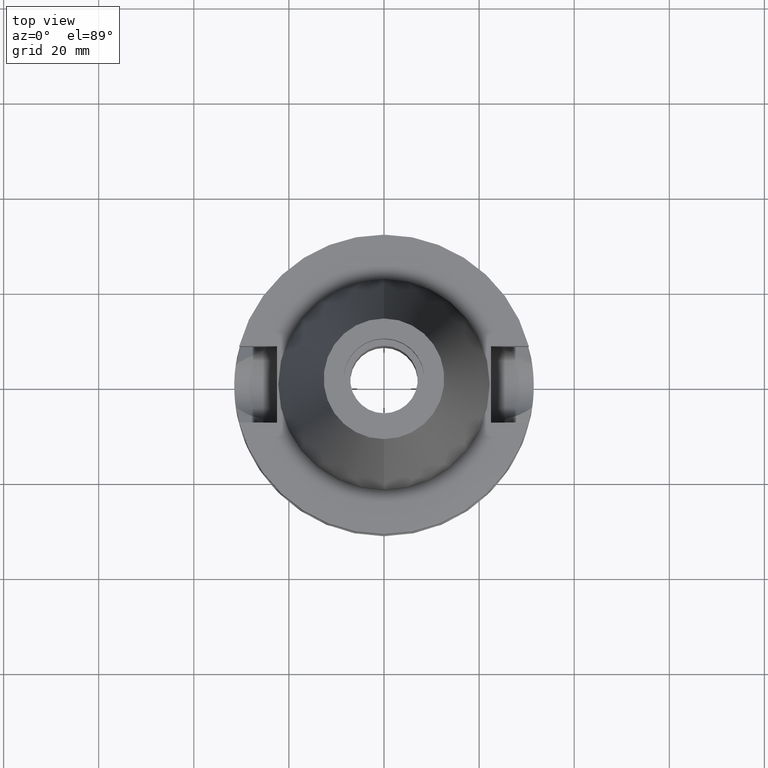
[diagram: clean part render]
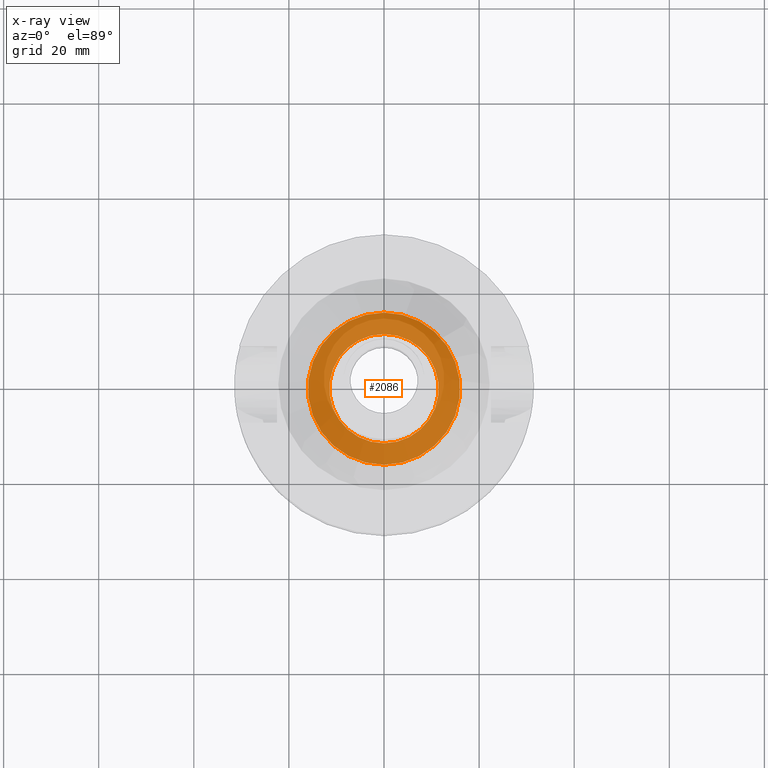
[diagram: x-ray — body ghosted, one internal face saturated and labeled with its STEP entity id]
A machine part, top view, then the same camera in x-ray: the body is ghosted and one INTERNAL B-rep face — a face not visible from any outside direction — is saturated and labeled: STEP entity #2086.
In plain terms, the highlighted planar face has unit normal (0, 0, -1).
Its self-contained STEP definition (entity closure, byte-faithful):
#11 = ORIENTED_EDGE ( 'NONE', *, *, #959, .F. ) ;
#12 = CARTESIAN_POINT ( 'NONE',  ( 0.0000000000000000000, 0.0000000000000000000, -10.80000000000000071 ) ) ;
#73 = CARTESIAN_POINT ( 'NONE',  ( 0.0000000000000000000, 11.50000000000000000, -10.80000000000000071 ) ) ;
#258 = VERTEX_POINT ( 'NONE', #1773 ) ;
#286 = FACE_OUTER_BOUND ( 'NONE', #1619, .T. ) ;
#330 = ORIENTED_EDGE ( 'NONE', *, *, #1411, .F. ) ;
#342 = CARTESIAN_POINT ( 'NONE',  ( 0.0000000000000000000, -16.00000000000000000, -10.80000000000000071 ) ) ;
#375 = DIRECTION ( 'NONE',  ( 0.0000000000000000000, 0.0000000000000000000, 1.000000000000000000 ) ) ;
#388 = CIRCLE ( 'NONE', #2846, 11.50000000000000000 ) ;
#397 = AXIS2_PLACEMENT_3D ( 'NONE', #1825, #375, #973 ) ;
#607 = FACE_BOUND ( 'NONE', #3338, .T. ) ;
#629 = AXIS2_PLACEMENT_3D ( 'NONE', #2399, #1348, #1579 ) ;
#775 = ORIENTED_EDGE ( 'NONE', *, *, #2456, .F. ) ;
#852 = DIRECTION ( 'NONE',  ( 0.0000000000000000000, -1.000000000000000000, 0.0000000000000000000 ) ) ;
#917 = CIRCLE ( 'NONE', #965, 16.00000000000000000 ) ;
#959 = EDGE_CURVE ( 'NONE', #3529, #258, #917, .T. ) ;
#965 = AXIS2_PLACEMENT_3D ( 'NONE', #2473, #3028, #3069 ) ;
#973 = DIRECTION ( 'NONE',  ( 0.0000000000000000000, 1.000000000000000000, 0.0000000000000000000 ) ) ;
#1160 = DIRECTION ( 'NONE',  ( 0.0000000000000000000, 0.0000000000000000000, -1.000000000000000000 ) ) ;
#1348 = DIRECTION ( 'NONE',  ( 0.0000000000000000000, 0.0000000000000000000, -1.000000000000000000 ) ) ;
#1411 = EDGE_CURVE ( 'NONE', #258, #3529, #2157, .T. ) ;
#1472 = AXIS2_PLACEMENT_3D ( 'NONE', #2187, #1160, #2906 ) ;
#1576 = ORIENTED_EDGE ( 'NONE', *, *, #2156, .F. ) ;
#1579 = DIRECTION ( 'NONE',  ( 0.0000000000000000000, 1.000000000000000000, 0.0000000000000000000 ) ) ;
#1619 = EDGE_LOOP ( 'NONE', ( #330, #11 ) ) ;
#1626 = CARTESIAN_POINT ( 'NONE',  ( 0.0000000000000000000, -11.50000000000000000, -10.80000000000000071 ) ) ;
#1691 = PLANE ( 'NONE',  #1472 ) ;
#1773 = CARTESIAN_POINT ( 'NONE',  ( 0.0000000000000000000, 16.00000000000000000, -10.80000000000000071 ) ) ;
#1825 = CARTESIAN_POINT ( 'NONE',  ( 0.0000000000000000000, 0.0000000000000000000, -10.80000000000000071 ) ) ;
#1944 = VERTEX_POINT ( 'NONE', #1626 ) ;
#2086 = ADVANCED_FACE ( 'NONE', ( #286, #607 ), #1691, .F. ) ;
#2156 = EDGE_CURVE ( 'NONE', #2485, #1944, #2383, .T. ) ;
#2157 = CIRCLE ( 'NONE', #629, 16.00000000000000000 ) ;
#2187 = CARTESIAN_POINT ( 'NONE',  ( 0.0000000000000000000, 0.0000000000000000000, -10.80000000000000071 ) ) ;
#2250 = DIRECTION ( 'NONE',  ( 0.0000000000000000000, 0.0000000000000000000, 1.000000000000000000 ) ) ;
#2383 = CIRCLE ( 'NONE', #397, 11.50000000000000000 ) ;
#2399 = CARTESIAN_POINT ( 'NONE',  ( 0.0000000000000000000, 0.0000000000000000000, -10.80000000000000071 ) ) ;
#2456 = EDGE_CURVE ( 'NONE', #1944, #2485, #388, .T. ) ;
#2473 = CARTESIAN_POINT ( 'NONE',  ( 0.0000000000000000000, 0.0000000000000000000, -10.80000000000000071 ) ) ;
#2485 = VERTEX_POINT ( 'NONE', #73 ) ;
#2846 = AXIS2_PLACEMENT_3D ( 'NONE', #12, #2250, #852 ) ;
#2906 = DIRECTION ( 'NONE',  ( 0.0000000000000000000, -1.000000000000000000, 0.0000000000000000000 ) ) ;
#3028 = DIRECTION ( 'NONE',  ( 0.0000000000000000000, 0.0000000000000000000, -1.000000000000000000 ) ) ;
#3069 = DIRECTION ( 'NONE',  ( 0.0000000000000000000, -1.000000000000000000, 0.0000000000000000000 ) ) ;
#3338 = EDGE_LOOP ( 'NONE', ( #1576, #775 ) ) ;
#3529 = VERTEX_POINT ( 'NONE', #342 ) ;